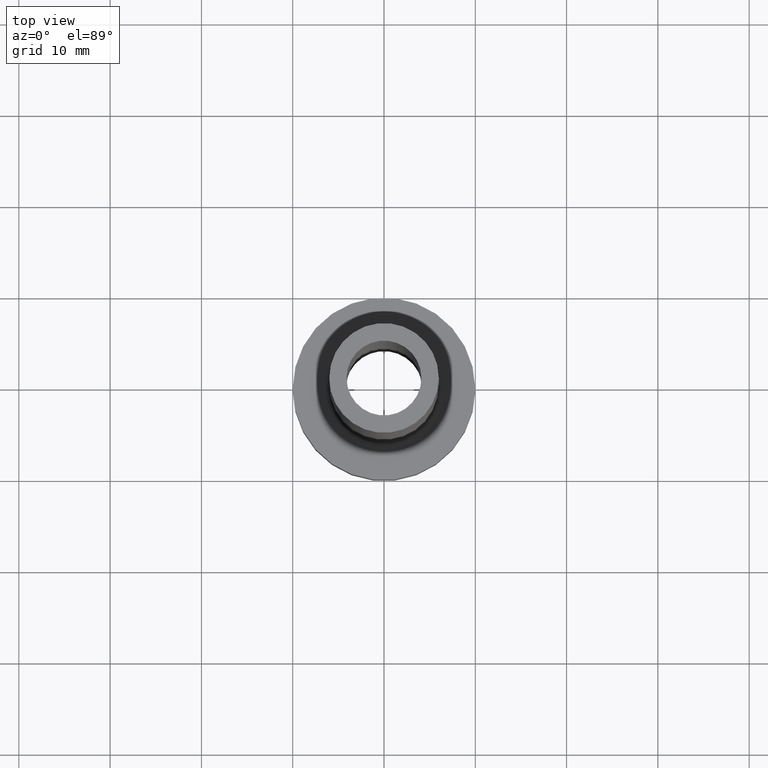
[diagram: clean part render]
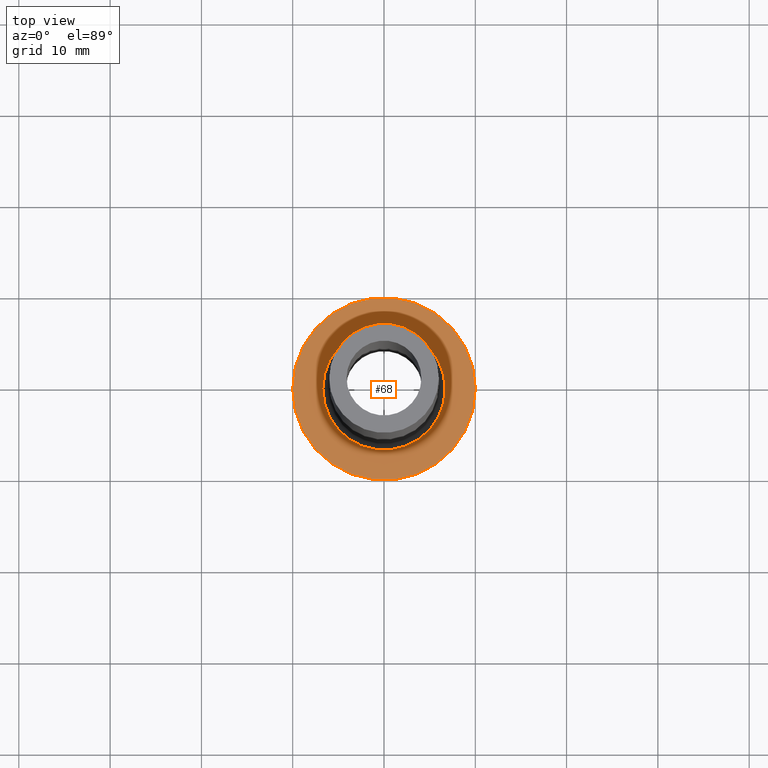
[diagram: same view with one face highlighted and labeled with its STEP entity id]
A machine part, top view. The second image highlights one B-rep face of the part: STEP entity #68.
In plain terms, the highlighted planar face has unit normal (0, 0, 1).
Its self-contained STEP definition (entity closure, byte-faithful):
#14 = CIRCLE ( 'NONE', #381, 10.00000000000000000 ) ;
#44 = CARTESIAN_POINT ( 'NONE',  ( 6.700000000000001066, 0.000000000000000000, 6.999999999999999112 ) ) ;
#61 = VERTEX_POINT ( 'NONE', #217 ) ;
#65 = CARTESIAN_POINT ( 'NONE',  ( 0.000000000000000000, 0.000000000000000000, 7.000000000000000000 ) ) ;
#66 = VERTEX_POINT ( 'NONE', #44 ) ;
#68 = ADVANCED_FACE ( 'NONE', ( #227, #264 ), #329, .T. ) ;
#78 = ORIENTED_EDGE ( 'NONE', *, *, #427, .T. ) ;
#115 = CARTESIAN_POINT ( 'NONE',  ( 0.000000000000000000, 0.000000000000000000, 7.000000000000000000 ) ) ;
#122 = ORIENTED_EDGE ( 'NONE', *, *, #377, .T. ) ;
#124 = CARTESIAN_POINT ( 'NONE',  ( 0.000000000000000000, 0.000000000000000000, 7.000000000000000000 ) ) ;
#127 = AXIS2_PLACEMENT_3D ( 'NONE', #124, #265, #444 ) ;
#134 = AXIS2_PLACEMENT_3D ( 'NONE', #115, #363, #429 ) ;
#138 = AXIS2_PLACEMENT_3D ( 'NONE', #65, #212, #144 ) ;
#144 = DIRECTION ( 'NONE',  ( 1.000000000000000000, 0.000000000000000000, 0.000000000000000000 ) ) ;
#150 = EDGE_CURVE ( 'NONE', #404, #66, #322, .T. ) ;
#158 = CARTESIAN_POINT ( 'NONE',  ( 0.000000000000000000, 0.000000000000000000, 7.000000000000000000 ) ) ;
#160 = CARTESIAN_POINT ( 'NONE',  ( -6.700000000000001066, 8.205133554287267548E-16, 6.999999999999999112 ) ) ;
#192 = CARTESIAN_POINT ( 'NONE',  ( 0.000000000000000000, 0.000000000000000000, 7.000000000000000000 ) ) ;
#207 = EDGE_CURVE ( 'NONE', #61, #379, #14, .T. ) ;
#212 = DIRECTION ( 'NONE',  ( -0.000000000000000000, -0.000000000000000000, -1.000000000000000000 ) ) ;
#217 = CARTESIAN_POINT ( 'NONE',  ( 10.00000000000000000, 1.224646799147353256E-15, 7.000000000000000000 ) ) ;
#224 = DIRECTION ( 'NONE',  ( 0.000000000000000000, 0.000000000000000000, 1.000000000000000000 ) ) ;
#227 = FACE_BOUND ( 'NONE', #313, .T. ) ;
#238 = ORIENTED_EDGE ( 'NONE', *, *, #150, .T. ) ;
#241 = AXIS2_PLACEMENT_3D ( 'NONE', #192, #224, #391 ) ;
#262 = DIRECTION ( 'NONE',  ( 0.000000000000000000, 0.000000000000000000, 1.000000000000000000 ) ) ;
#264 = FACE_OUTER_BOUND ( 'NONE', #269, .T. ) ;
#265 = DIRECTION ( 'NONE',  ( -0.000000000000000000, -0.000000000000000000, -1.000000000000000000 ) ) ;
#269 = EDGE_LOOP ( 'NONE', ( #78, #406 ) ) ;
#313 = EDGE_LOOP ( 'NONE', ( #122, #238 ) ) ;
#319 = CARTESIAN_POINT ( 'NONE',  ( -10.00000000000000000, 0.000000000000000000, 7.000000000000000000 ) ) ;
#322 = CIRCLE ( 'NONE', #127, 6.700000000000001066 ) ;
#329 = PLANE ( 'NONE',  #134 ) ;
#346 = CIRCLE ( 'NONE', #138, 6.700000000000001066 ) ;
#363 = DIRECTION ( 'NONE',  ( 0.000000000000000000, 0.000000000000000000, 1.000000000000000000 ) ) ;
#377 = EDGE_CURVE ( 'NONE', #66, #404, #346, .T. ) ;
#379 = VERTEX_POINT ( 'NONE', #319 ) ;
#381 = AXIS2_PLACEMENT_3D ( 'NONE', #158, #262, #395 ) ;
#388 = CIRCLE ( 'NONE', #241, 10.00000000000000000 ) ;
#391 = DIRECTION ( 'NONE',  ( 1.000000000000000000, 0.000000000000000000, 0.000000000000000000 ) ) ;
#395 = DIRECTION ( 'NONE',  ( 1.000000000000000000, 0.000000000000000000, 0.000000000000000000 ) ) ;
#404 = VERTEX_POINT ( 'NONE', #160 ) ;
#406 = ORIENTED_EDGE ( 'NONE', *, *, #207, .T. ) ;
#427 = EDGE_CURVE ( 'NONE', #379, #61, #388, .T. ) ;
#429 = DIRECTION ( 'NONE',  ( 1.000000000000000000, 0.000000000000000000, -0.000000000000000000 ) ) ;
#444 = DIRECTION ( 'NONE',  ( 1.000000000000000000, 0.000000000000000000, 0.000000000000000000 ) ) ;